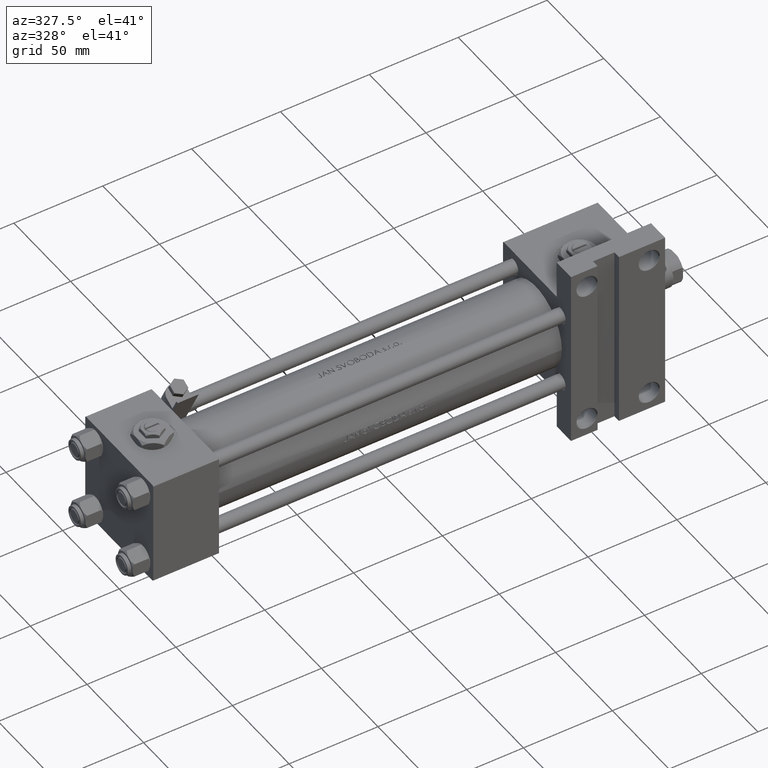
[diagram: clean part render]
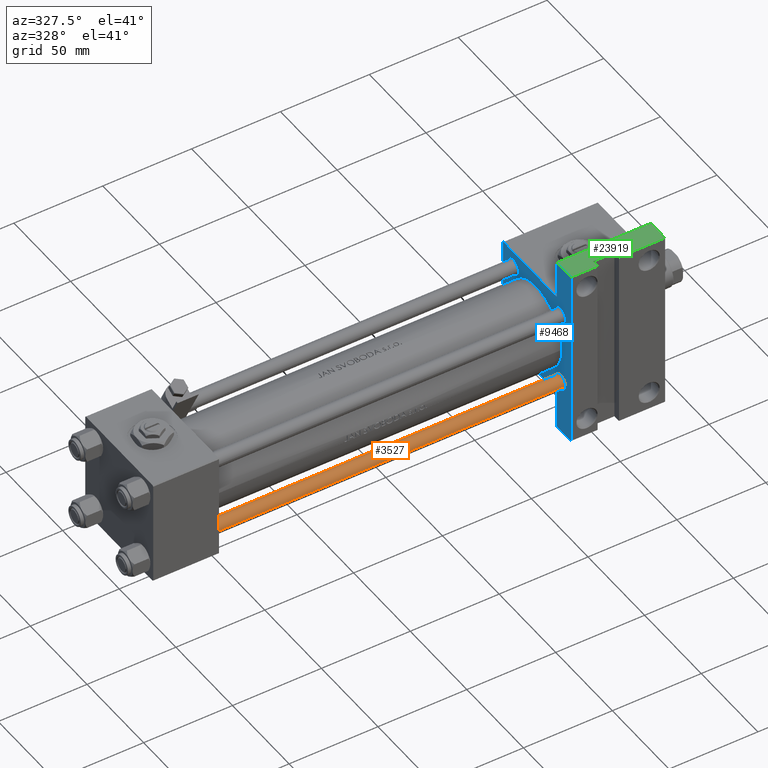
[diagram: same view with three faces highlighted in distinct colors, each labeled with its STEP entity id]
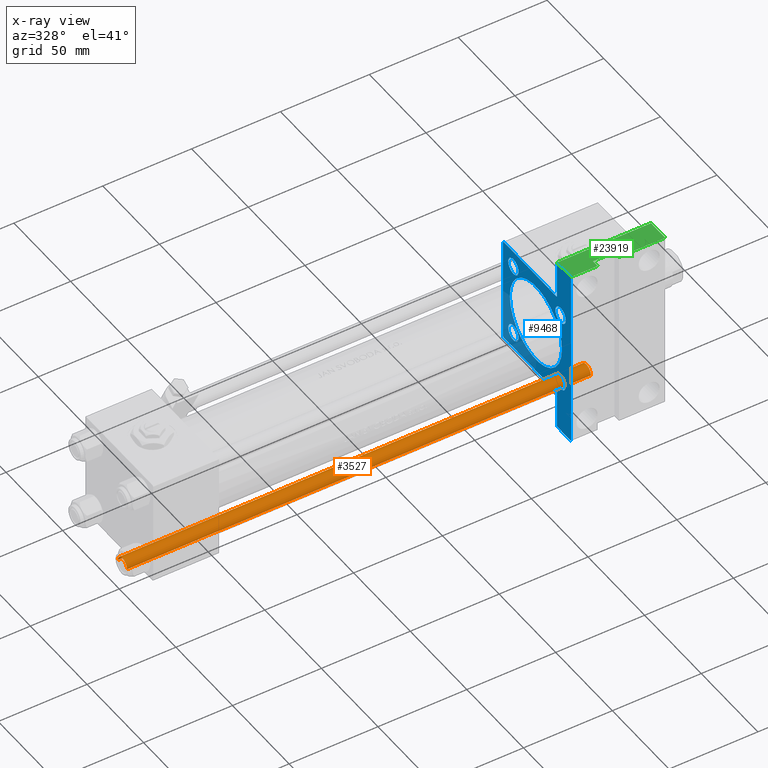
[diagram: x-ray of the same camera — body ghosted, the three highlighted faces saturated]
A machine part, auxiliary view with three faces highlighted in distinct colors.
The next image is the same camera in x-ray (body ghosted, the three faces saturated) — at least one of them is partly hidden behind the body in this view.
Their STEP definitions:

[orange] entity #3527 — the highlighted cylindrical surface (edge-blend (fillet) strip) has radius 4 mm, axis along (1, 0, 0).
#936 = VECTOR ( 'NONE', #16417, 1000.000000000000000 ) ;
#1458 = VERTEX_POINT ( 'NONE', #18186 ) ;
#2367 = VERTEX_POINT ( 'NONE', #22625 ) ;
#2515 = DIRECTION ( 'NONE',  ( -1.000000000000000000, 0.000000000000000000, 0.000000000000000000 ) ) ;
#3527 = ADVANCED_FACE ( 'NONE', ( #6441 ), #34971, .T. ) ;
#4128 = DIRECTION ( 'NONE',  ( -0.000000000000000000, -0.000000000000000000, 1.000000000000000000 ) ) ;
#4670 = EDGE_CURVE ( 'NONE', #28325, #1458, #34199, .T. ) ;
#6114 = EDGE_CURVE ( 'NONE', #2367, #1458, #47521, .T. ) ;
#6441 = FACE_OUTER_BOUND ( 'NONE', #12137, .T. ) ;
#7972 = ORIENTED_EDGE ( 'NONE', *, *, #50745, .T. ) ;
#8755 = CIRCLE ( 'NONE', #38886, 4.000000000000000000 ) ;
#8821 = DIRECTION ( 'NONE',  ( 1.000000000000000000, 0.000000000000000000, 0.000000000000000000 ) ) ;
#8987 = ORIENTED_EDGE ( 'NONE', *, *, #6114, .T. ) ;
#11170 = CARTESIAN_POINT ( 'NONE',  ( -4.000000000000000000, 0.000000000000000000, 262.0000000000000000 ) ) ;
#11698 = ORIENTED_EDGE ( 'NONE', *, *, #4670, .F. ) ;
#11976 = CARTESIAN_POINT ( 'NONE',  ( 4.000000000000000000, 4.898587196589412829E-16, 262.0000000000000000 ) ) ;
#12137 = EDGE_LOOP ( 'NONE', ( #34759, #7972, #8987, #11698 ) ) ;
#16417 = DIRECTION ( 'NONE',  ( -0.000000000000000000, -0.000000000000000000, -1.000000000000000000 ) ) ;
#18186 = CARTESIAN_POINT ( 'NONE',  ( -4.000000000000000000, 0.000000000000000000, 0.5000000000000559552 ) ) ;
#19005 = CARTESIAN_POINT ( 'NONE',  ( 0.000000000000000000, 0.000000000000000000, 262.0000000000000000 ) ) ;
#19977 = CARTESIAN_POINT ( 'NONE',  ( 4.000000000000000000, 4.898587196589412829E-16, 261.5000000000000000 ) ) ;
#21316 = CARTESIAN_POINT ( 'NONE',  ( 0.000000000000000000, 0.000000000000000000, 261.5000000000000000 ) ) ;
#22429 = AXIS2_PLACEMENT_3D ( 'NONE', #28203, #4128, #8821 ) ;
#22625 = CARTESIAN_POINT ( 'NONE',  ( 4.000000000000000000, 4.898587196589412829E-16, 0.5000000000000559552 ) ) ;
#23178 = AXIS2_PLACEMENT_3D ( 'NONE', #19005, #50965, #2515 ) ;
#25250 = DIRECTION ( 'NONE',  ( 0.000000000000000000, 0.000000000000000000, -1.000000000000000000 ) ) ;
#28203 = CARTESIAN_POINT ( 'NONE',  ( 0.000000000000000000, 0.000000000000000000, 0.5000000000000559552 ) ) ;
#28325 = VERTEX_POINT ( 'NONE', #39821 ) ;
#34199 = LINE ( 'NONE', #11170, #41634 ) ;
#34476 = EDGE_CURVE ( 'NONE', #28325, #35613, #8755, .T. ) ;
#34759 = ORIENTED_EDGE ( 'NONE', *, *, #34476, .T. ) ;
#34971 = CYLINDRICAL_SURFACE ( 'NONE', #23178, 4.000000000000000000 ) ;
#35613 = VERTEX_POINT ( 'NONE', #19977 ) ;
#38886 = AXIS2_PLACEMENT_3D ( 'NONE', #21316, #25250, #40943 ) ;
#39821 = CARTESIAN_POINT ( 'NONE',  ( -4.000000000000000000, 0.000000000000000000, 261.5000000000000000 ) ) ;
#40230 = LINE ( 'NONE', #11976, #936 ) ;
#40943 = DIRECTION ( 'NONE',  ( 1.000000000000000000, 0.000000000000000000, 0.000000000000000000 ) ) ;
#41634 = VECTOR ( 'NONE', #43108, 1000.000000000000000 ) ;
#43108 = DIRECTION ( 'NONE',  ( -0.000000000000000000, -0.000000000000000000, -1.000000000000000000 ) ) ;
#47521 = CIRCLE ( 'NONE', #22429, 4.000000000000000000 ) ;
#50745 = EDGE_CURVE ( 'NONE', #35613, #2367, #40230, .T. ) ;
#50965 = DIRECTION ( 'NONE',  ( -0.000000000000000000, -0.000000000000000000, -1.000000000000000000 ) ) ;

[blue] entity #9468 — the highlighted planar face has unit normal (-1, 0, -0).
#689 = VERTEX_POINT ( 'NONE', #36964 ) ;
#748 = CIRCLE ( 'NONE', #4123, 4.500000000000007105 ) ;
#1271 = EDGE_LOOP ( 'NONE', ( #13258, #27684 ) ) ;
#1642 = CARTESIAN_POINT ( 'NONE',  ( 235.0000000000000284, -51.50000000000002132, -29.99999999999999645 ) ) ;
#1815 = DIRECTION ( 'NONE',  ( -0.000000000000000000, 0.000000000000000000, 1.000000000000000000 ) ) ;
#1848 = CIRCLE ( 'NONE', #49499, 4.500000000000007105 ) ;
#1859 = VERTEX_POINT ( 'NONE', #42711 ) ;
#2069 = CARTESIAN_POINT ( 'NONE',  ( 235.0000000000000284, 51.49999999999997868, -17.49999999999999645 ) ) ;
#2148 = CARTESIAN_POINT ( 'NONE',  ( 235.0000000000000284, 20.84999999999999787, 25.35000000000000853 ) ) ;
#3192 = CIRCLE ( 'NONE', #24898, 4.500000000000007105 ) ;
#3818 = CARTESIAN_POINT ( 'NONE',  ( 235.0000000000000284, 30.00000000000000000, -17.49999999999998224 ) ) ;
#4013 = CIRCLE ( 'NONE', #45835, 4.500000000000007105 ) ;
#4062 = CARTESIAN_POINT ( 'NONE',  ( 235.0000000000000284, -1.224646799147354686E-16, 1.000000000000000888 ) ) ;
#4123 = AXIS2_PLACEMENT_3D ( 'NONE', #25961, #17860, #21522 ) ;
#4154 = EDGE_CURVE ( 'NONE', #1859, #49333, #3192, .T. ) ;
#4733 = CARTESIAN_POINT ( 'NONE',  ( 235.0000000000000284, -30.00000000000000000, 29.49999999999993605 ) ) ;
#4996 = DIRECTION ( 'NONE',  ( 0.000000000000000000, 0.000000000000000000, -1.000000000000000000 ) ) ;
#5132 = EDGE_LOOP ( 'NONE', ( #51809, #16420, #8617, #7700, #18566, #28696, #37142, #44551, #47782, #28459 ) ) ;
#5514 = AXIS2_PLACEMENT_3D ( 'NONE', #4062, #12423, #36758 ) ;
#5974 = CARTESIAN_POINT ( 'NONE',  ( 235.0000000000000284, -20.84999999999999076, -20.85000000000000497 ) ) ;
#6229 = AXIS2_PLACEMENT_3D ( 'NONE', #33829, #9495, #41428 ) ;
#6232 = DIRECTION ( 'NONE',  ( 1.000000000000000000, -0.000000000000000000, 0.000000000000000000 ) ) ;
#6282 = DIRECTION ( 'NONE',  ( 0.000000000000000000, 0.000000000000000000, -1.000000000000000000 ) ) ;
#6338 = CARTESIAN_POINT ( 'NONE',  ( 235.0000000000000284, 20.84999999999999787, -25.35000000000000853 ) ) ;
#6466 = EDGE_CURVE ( 'NONE', #17773, #10599, #19778, .T. ) ;
#6658 = DIRECTION ( 'NONE',  ( 1.000000000000000000, -0.000000000000000000, 0.000000000000000000 ) ) ;
#6824 = DIRECTION ( 'NONE',  ( 0.000000000000000000, 1.000000000000000000, 0.000000000000000000 ) ) ;
#7041 = DIRECTION ( 'NONE',  ( 0.000000000000000000, 0.000000000000000000, 1.000000000000000000 ) ) ;
#7700 = ORIENTED_EDGE ( 'NONE', *, *, #21653, .T. ) ;
#7883 = EDGE_CURVE ( 'NONE', #36931, #47979, #748, .T. ) ;
#8404 = CARTESIAN_POINT ( 'NONE',  ( 235.0000000000000284, 51.49999999999997868, -17.49999999999999645 ) ) ;
#8617 = ORIENTED_EDGE ( 'NONE', *, *, #29218, .T. ) ;
#8889 = CARTESIAN_POINT ( 'NONE',  ( 235.0000000000000284, -20.84999999999999076, 20.85000000000000497 ) ) ;
#9027 = VERTEX_POINT ( 'NONE', #43531 ) ;
#9468 = ADVANCED_FACE ( 'NONE', ( #21698, #37664, #46044, #25372, #29559, #41327 ), #18279, .T. ) ;
#9495 = DIRECTION ( 'NONE',  ( 1.000000000000000000, -0.000000000000000000, 0.000000000000000000 ) ) ;
#9656 = DIRECTION ( 'NONE',  ( -1.000000000000000000, 0.000000000000000000, -0.000000000000000000 ) ) ;
#9717 = VERTEX_POINT ( 'NONE', #22334 ) ;
#9920 = DIRECTION ( 'NONE',  ( -1.290957005378090308E-15, 1.000000000000000000, -0.000000000000000000 ) ) ;
#10431 = LINE ( 'NONE', #2069, #45622 ) ;
#10599 = VERTEX_POINT ( 'NONE', #32332 ) ;
#10988 = EDGE_CURVE ( 'NONE', #33734, #46631, #47703, .T. ) ;
#11575 = CARTESIAN_POINT ( 'NONE',  ( 235.0000000000000284, -20.84999999999999076, -16.34999999999999787 ) ) ;
#11631 = DIRECTION ( 'NONE',  ( 1.000000000000000000, 0.000000000000000000, 0.000000000000000000 ) ) ;
#12423 = DIRECTION ( 'NONE',  ( 1.000000000000000000, 0.000000000000000000, 0.000000000000000000 ) ) ;
#13257 = CARTESIAN_POINT ( 'NONE',  ( 235.0000000000000284, -29.74999999999997158, 29.74999999999997158 ) ) ;
#13258 = ORIENTED_EDGE ( 'NONE', *, *, #39218, .T. ) ;
#13424 = AXIS2_PLACEMENT_3D ( 'NONE', #23000, #51569, #7041 ) ;
#13896 = ORIENTED_EDGE ( 'NONE', *, *, #7883, .T. ) ;
#14553 = VECTOR ( 'NONE', #6282, 1000.000000000000000 ) ;
#14666 = EDGE_CURVE ( 'NONE', #46631, #33734, #27665, .T. ) ;
#14831 = EDGE_CURVE ( 'NONE', #9717, #17813, #37181, .T. ) ;
#15458 = CARTESIAN_POINT ( 'NONE',  ( 235.0000000000000284, -51.50000000000002132, -17.49999999999999645 ) ) ;
#15465 = VERTEX_POINT ( 'NONE', #45254 ) ;
#16291 = EDGE_CURVE ( 'NONE', #48876, #35962, #1848, .T. ) ;
#16420 = ORIENTED_EDGE ( 'NONE', *, *, #35046, .T. ) ;
#16723 = CARTESIAN_POINT ( 'NONE',  ( 235.0000000000000284, -20.84999999999999076, 16.34999999999999787 ) ) ;
#17676 = CARTESIAN_POINT ( 'NONE',  ( 235.0000000000000284, -30.00000000000000000, 29.99999999999999289 ) ) ;
#17726 = DIRECTION ( 'NONE',  ( 0.000000000000000000, 0.7071067811865672237, -0.7071067811865279218 ) ) ;
#17773 = VERTEX_POINT ( 'NONE', #22391 ) ;
#17813 = VERTEX_POINT ( 'NONE', #28133 ) ;
#17860 = DIRECTION ( 'NONE',  ( 1.000000000000000000, -0.000000000000000000, 0.000000000000000000 ) ) ;
#17960 = CIRCLE ( 'NONE', #32977, 4.500000000000007105 ) ;
#18279 = PLANE ( 'NONE',  #50169 ) ;
#18322 = LINE ( 'NONE', #38212, #14553 ) ;
#18566 = ORIENTED_EDGE ( 'NONE', *, *, #14831, .T. ) ;
#18808 = DIRECTION ( 'NONE',  ( 0.000000000000000000, 0.000000000000000000, -1.000000000000000000 ) ) ;
#18833 = DIRECTION ( 'NONE',  ( 0.000000000000000000, -1.000000000000000000, -1.156482317317871478E-16 ) ) ;
#19778 = LINE ( 'NONE', #24472, #35027 ) ;
#20204 = VECTOR ( 'NONE', #6824, 1000.000000000000000 ) ;
#20286 = DIRECTION ( 'NONE',  ( 0.000000000000000000, -1.000000000000000000, -1.156482317317871478E-16 ) ) ;
#21522 = DIRECTION ( 'NONE',  ( 0.000000000000000000, 0.000000000000000000, 1.000000000000000000 ) ) ;
#21647 = CARTESIAN_POINT ( 'NONE',  ( 235.0000000000000284, 29.74999999999916156, 29.75000000000081712 ) ) ;
#21653 = EDGE_CURVE ( 'NONE', #40999, #9717, #10431, .T. ) ;
#21698 = FACE_BOUND ( 'NONE', #21917, .T. ) ;
#21917 = EDGE_LOOP ( 'NONE', ( #37341, #39706 ) ) ;
#22334 = CARTESIAN_POINT ( 'NONE',  ( 235.0000000000000284, 51.49999999999997868, -17.49999999999999645 ) ) ;
#22391 = CARTESIAN_POINT ( 'NONE',  ( 235.0000000000000284, 29.49999999999997158, 30.00000000000000000 ) ) ;
#22764 = EDGE_CURVE ( 'NONE', #40506, #51349, #30649, .T. ) ;
#22991 = LINE ( 'NONE', #31374, #33230 ) ;
#23000 = CARTESIAN_POINT ( 'NONE',  ( 235.0000000000000284, 20.84999999999999787, 20.85000000000000142 ) ) ;
#23165 = CARTESIAN_POINT ( 'NONE',  ( 235.0000000000000284, -20.84999999999999076, 20.85000000000000497 ) ) ;
#23302 = ORIENTED_EDGE ( 'NONE', *, *, #30976, .T. ) ;
#23825 = VECTOR ( 'NONE', #17726, 1000.000000000000000 ) ;
#24472 = CARTESIAN_POINT ( 'NONE',  ( 235.0000000000000284, 30.00000000000000000, 30.00000000000000000 ) ) ;
#24862 = DIRECTION ( 'NONE',  ( 1.000000000000000000, -0.000000000000000000, 0.000000000000000000 ) ) ;
#24898 = AXIS2_PLACEMENT_3D ( 'NONE', #8889, #24862, #28267 ) ;
#25177 = EDGE_LOOP ( 'NONE', ( #13896, #47572 ) ) ;
#25372 = FACE_BOUND ( 'NONE', #44241, .T. ) ;
#25907 = EDGE_CURVE ( 'NONE', #29086, #51349, #33373, .T. ) ;
#25961 = CARTESIAN_POINT ( 'NONE',  ( 235.0000000000000284, 20.84999999999999787, -20.85000000000000142 ) ) ;
#26379 = DIRECTION ( 'NONE',  ( 0.000000000000000000, 0.000000000000000000, 1.000000000000000000 ) ) ;
#27665 = CIRCLE ( 'NONE', #36030, 4.500000000000007105 ) ;
#27684 = ORIENTED_EDGE ( 'NONE', *, *, #37301, .T. ) ;
#28133 = CARTESIAN_POINT ( 'NONE',  ( 235.0000000000000284, 51.49999999999997868, -29.99999999999999645 ) ) ;
#28160 = AXIS2_PLACEMENT_3D ( 'NONE', #31004, #11631, #43312 ) ;
#28267 = DIRECTION ( 'NONE',  ( 0.000000000000000000, 0.000000000000000000, 1.000000000000000000 ) ) ;
#28459 = ORIENTED_EDGE ( 'NONE', *, *, #34229, .T. ) ;
#28696 = ORIENTED_EDGE ( 'NONE', *, *, #47554, .T. ) ;
#28791 = CIRCLE ( 'NONE', #6229, 4.500000000000007105 ) ;
#28972 = CIRCLE ( 'NONE', #28160, 23.00000000000000000 ) ;
#29086 = VERTEX_POINT ( 'NONE', #4733 ) ;
#29191 = DIRECTION ( 'NONE',  ( 0.000000000000000000, 0.000000000000000000, -1.000000000000000000 ) ) ;
#29218 = EDGE_CURVE ( 'NONE', #689, #40999, #18322, .T. ) ;
#29559 = FACE_BOUND ( 'NONE', #1271, .T. ) ;
#30649 = LINE ( 'NONE', #15458, #20204 ) ;
#30755 = EDGE_CURVE ( 'NONE', #49333, #1859, #17960, .T. ) ;
#30841 = CARTESIAN_POINT ( 'NONE',  ( 235.0000000000000284, 20.84999999999999787, -16.34999999999999432 ) ) ;
#30976 = EDGE_CURVE ( 'NONE', #35962, #48876, #28791, .T. ) ;
#31004 = CARTESIAN_POINT ( 'NONE',  ( 235.0000000000000284, -1.224646799147354686E-16, 1.000000000000000888 ) ) ;
#31374 = CARTESIAN_POINT ( 'NONE',  ( 235.0000000000000284, -51.50000000000002132, -17.49999999999999645 ) ) ;
#31412 = CIRCLE ( 'NONE', #5514, 23.00000000000000000 ) ;
#31439 = CARTESIAN_POINT ( 'NONE',  ( 235.0000000000000284, -20.84999999999999076, -25.35000000000001208 ) ) ;
#31721 = CARTESIAN_POINT ( 'NONE',  ( 235.0000000000000284, 20.84999999999999787, 20.85000000000000142 ) ) ;
#32332 = CARTESIAN_POINT ( 'NONE',  ( 235.0000000000000284, -29.49999999999994316, 29.99999999999999289 ) ) ;
#32977 = AXIS2_PLACEMENT_3D ( 'NONE', #23165, #39137, #47008 ) ;
#33230 = VECTOR ( 'NONE', #18808, 1000.000000000000000 ) ;
#33373 = LINE ( 'NONE', #17676, #38698 ) ;
#33411 = DIRECTION ( 'NONE',  ( -0.000000000000000000, 0.7071067811865474617, 0.7071067811865474617 ) ) ;
#33734 = VERTEX_POINT ( 'NONE', #2148 ) ;
#33829 = CARTESIAN_POINT ( 'NONE',  ( 235.0000000000000284, -20.84999999999999076, -20.85000000000000497 ) ) ;
#34229 = EDGE_CURVE ( 'NONE', #29086, #10599, #44449, .T. ) ;
#35027 = VECTOR ( 'NONE', #20286, 1000.000000000000000 ) ;
#35046 = EDGE_CURVE ( 'NONE', #17773, #689, #45223, .T. ) ;
#35057 = CARTESIAN_POINT ( 'NONE',  ( 235.0000000000000284, 30.00000000000000000, -29.99999999999999289 ) ) ;
#35645 = DIRECTION ( 'NONE',  ( 0.000000000000000000, 0.000000000000000000, 1.000000000000000000 ) ) ;
#35962 = VERTEX_POINT ( 'NONE', #31439 ) ;
#36030 = AXIS2_PLACEMENT_3D ( 'NONE', #31721, #46926, #35645 ) ;
#36059 = EDGE_LOOP ( 'NONE', ( #38687, #41098 ) ) ;
#36553 = VERTEX_POINT ( 'NONE', #1642 ) ;
#36758 = DIRECTION ( 'NONE',  ( 0.000000000000000000, 0.000000000000000000, -1.000000000000000000 ) ) ;
#36931 = VERTEX_POINT ( 'NONE', #30841 ) ;
#36964 = CARTESIAN_POINT ( 'NONE',  ( 235.0000000000000284, 30.00000000000000000, 29.50000000000000000 ) ) ;
#37142 = ORIENTED_EDGE ( 'NONE', *, *, #40553, .F. ) ;
#37181 = LINE ( 'NONE', #8404, #51122 ) ;
#37301 = EDGE_CURVE ( 'NONE', #9027, #15465, #31412, .T. ) ;
#37341 = ORIENTED_EDGE ( 'NONE', *, *, #4154, .T. ) ;
#37664 = FACE_BOUND ( 'NONE', #36059, .T. ) ;
#37890 = CARTESIAN_POINT ( 'NONE',  ( 235.0000000000000284, 20.84999999999999787, 16.34999999999999432 ) ) ;
#38212 = CARTESIAN_POINT ( 'NONE',  ( 235.0000000000000284, 30.00000000000000000, 30.00000000000000000 ) ) ;
#38687 = ORIENTED_EDGE ( 'NONE', *, *, #10988, .T. ) ;
#38698 = VECTOR ( 'NONE', #29191, 1000.000000000000000 ) ;
#39137 = DIRECTION ( 'NONE',  ( 1.000000000000000000, -0.000000000000000000, 0.000000000000000000 ) ) ;
#39218 = EDGE_CURVE ( 'NONE', #15465, #9027, #28972, .T. ) ;
#39706 = ORIENTED_EDGE ( 'NONE', *, *, #30755, .T. ) ;
#40506 = VERTEX_POINT ( 'NONE', #45543 ) ;
#40553 = EDGE_CURVE ( 'NONE', #40506, #36553, #22991, .T. ) ;
#40999 = VERTEX_POINT ( 'NONE', #3818 ) ;
#41098 = ORIENTED_EDGE ( 'NONE', *, *, #14666, .T. ) ;
#41327 = FACE_OUTER_BOUND ( 'NONE', #5132, .T. ) ;
#41428 = DIRECTION ( 'NONE',  ( 0.000000000000000000, 0.000000000000000000, 1.000000000000000000 ) ) ;
#42092 = EDGE_CURVE ( 'NONE', #47979, #36931, #4013, .T. ) ;
#42711 = CARTESIAN_POINT ( 'NONE',  ( 235.0000000000000284, -20.84999999999999076, 25.35000000000001208 ) ) ;
#43312 = DIRECTION ( 'NONE',  ( 0.000000000000000000, 0.000000000000000000, -1.000000000000000000 ) ) ;
#43531 = CARTESIAN_POINT ( 'NONE',  ( 235.0000000000000284, 2.694222958124176809E-15, -22.00000000000000000 ) ) ;
#44241 = EDGE_LOOP ( 'NONE', ( #51705, #23302 ) ) ;
#44449 = LINE ( 'NONE', #13257, #46479 ) ;
#44551 = ORIENTED_EDGE ( 'NONE', *, *, #22764, .T. ) ;
#44936 = CARTESIAN_POINT ( 'NONE',  ( 235.0000000000000284, -30.00000000000000000, -17.49999999999999645 ) ) ;
#45223 = LINE ( 'NONE', #21647, #23825 ) ;
#45254 = CARTESIAN_POINT ( 'NONE',  ( 235.0000000000000284, -1.224646799147354686E-16, 24.00000000000000000 ) ) ;
#45534 = CARTESIAN_POINT ( 'NONE',  ( 235.0000000000000284, 0.000000000000000000, 0.000000000000000000 ) ) ;
#45543 = CARTESIAN_POINT ( 'NONE',  ( 235.0000000000000284, -51.50000000000002132, -17.49999999999999645 ) ) ;
#45622 = VECTOR ( 'NONE', #9920, 1000.000000000000000 ) ;
#45835 = AXIS2_PLACEMENT_3D ( 'NONE', #47489, #6658, #46454 ) ;
#46044 = FACE_BOUND ( 'NONE', #25177, .T. ) ;
#46454 = DIRECTION ( 'NONE',  ( 0.000000000000000000, 0.000000000000000000, 1.000000000000000000 ) ) ;
#46479 = VECTOR ( 'NONE', #33411, 1000.000000000000114 ) ;
#46631 = VERTEX_POINT ( 'NONE', #37890 ) ;
#46926 = DIRECTION ( 'NONE',  ( 1.000000000000000000, -0.000000000000000000, 0.000000000000000000 ) ) ;
#47008 = DIRECTION ( 'NONE',  ( 0.000000000000000000, 0.000000000000000000, 1.000000000000000000 ) ) ;
#47489 = CARTESIAN_POINT ( 'NONE',  ( 235.0000000000000284, 20.84999999999999787, -20.85000000000000142 ) ) ;
#47554 = EDGE_CURVE ( 'NONE', #17813, #36553, #50788, .T. ) ;
#47572 = ORIENTED_EDGE ( 'NONE', *, *, #42092, .T. ) ;
#47703 = CIRCLE ( 'NONE', #13424, 4.500000000000007105 ) ;
#47782 = ORIENTED_EDGE ( 'NONE', *, *, #25907, .F. ) ;
#47979 = VERTEX_POINT ( 'NONE', #6338 ) ;
#48876 = VERTEX_POINT ( 'NONE', #11575 ) ;
#49243 = VECTOR ( 'NONE', #18833, 1000.000000000000000 ) ;
#49333 = VERTEX_POINT ( 'NONE', #16723 ) ;
#49499 = AXIS2_PLACEMENT_3D ( 'NONE', #5974, #6232, #26379 ) ;
#50169 = AXIS2_PLACEMENT_3D ( 'NONE', #45534, #9656, #1815 ) ;
#50788 = LINE ( 'NONE', #35057, #49243 ) ;
#51122 = VECTOR ( 'NONE', #4996, 1000.000000000000000 ) ;
#51349 = VERTEX_POINT ( 'NONE', #44936 ) ;
#51569 = DIRECTION ( 'NONE',  ( 1.000000000000000000, -0.000000000000000000, 0.000000000000000000 ) ) ;
#51705 = ORIENTED_EDGE ( 'NONE', *, *, #16291, .T. ) ;
#51809 = ORIENTED_EDGE ( 'NONE', *, *, #6466, .F. ) ;

[green] entity #23919 — the highlighted planar face has unit normal (0, 0, 1).
#420 = EDGE_CURVE ( 'NONE', #17313, #5154, #5102, .T. ) ;
#1219 = ORIENTED_EDGE ( 'NONE', *, *, #29614, .T. ) ;
#1642 = CARTESIAN_POINT ( 'NONE',  ( 235.0000000000000284, -51.50000000000002132, -29.99999999999999645 ) ) ;
#2078 = VECTOR ( 'NONE', #13334, 1000.000000000000000 ) ;
#2696 = VECTOR ( 'NONE', #29807, 1000.000000000000000 ) ;
#2867 = VECTOR ( 'NONE', #34489, 1000.000000000000000 ) ;
#3323 = ORIENTED_EDGE ( 'NONE', *, *, #17520, .F. ) ;
#4742 = EDGE_CURVE ( 'NONE', #50079, #36553, #36515, .T. ) ;
#5102 = LINE ( 'NONE', #27904, #51628 ) ;
#5154 = VERTEX_POINT ( 'NONE', #51702 ) ;
#5338 = LINE ( 'NONE', #32822, #50280 ) ;
#5595 = DIRECTION ( 'NONE',  ( -1.000000000000000000, -0.000000000000000000, -0.000000000000000000 ) ) ;
#5667 = ORIENTED_EDGE ( 'NONE', *, *, #34773, .F. ) ;
#7271 = DIRECTION ( 'NONE',  ( -1.000000000000000000, -0.000000000000000000, -0.000000000000000000 ) ) ;
#7454 = CARTESIAN_POINT ( 'NONE',  ( 250.0000000000000568, -51.49999999999997868, -29.99999999999999645 ) ) ;
#8595 = ORIENTED_EDGE ( 'NONE', *, *, #50273, .F. ) ;
#8662 = CARTESIAN_POINT ( 'NONE',  ( 288.0000000000000568, -51.50000000000002132, -17.49999999999999645 ) ) ;
#8746 = ORIENTED_EDGE ( 'NONE', *, *, #40553, .T. ) ;
#11202 = CARTESIAN_POINT ( 'NONE',  ( 250.0000000000000568, -51.49999999999997868, -25.99999999999999645 ) ) ;
#12434 = DIRECTION ( 'NONE',  ( -0.000000000000000000, -0.000000000000000000, -1.000000000000000000 ) ) ;
#13334 = DIRECTION ( 'NONE',  ( 0.000000000000000000, 0.000000000000000000, -1.000000000000000000 ) ) ;
#14586 = ORIENTED_EDGE ( 'NONE', *, *, #420, .T. ) ;
#14904 = VERTEX_POINT ( 'NONE', #8662 ) ;
#16226 = CARTESIAN_POINT ( 'NONE',  ( 262.0000000000000000, -51.50000000000002132, -25.99999999999999645 ) ) ;
#17313 = VERTEX_POINT ( 'NONE', #16226 ) ;
#17409 = EDGE_CURVE ( 'NONE', #31717, #50079, #25366, .T. ) ;
#17520 = EDGE_CURVE ( 'NONE', #17313, #31717, #23234, .T. ) ;
#18518 = CARTESIAN_POINT ( 'NONE',  ( 235.0000000000000284, -51.50000000000002132, -17.49999999999999645 ) ) ;
#18808 = DIRECTION ( 'NONE',  ( 0.000000000000000000, 0.000000000000000000, -1.000000000000000000 ) ) ;
#21167 = CARTESIAN_POINT ( 'NONE',  ( 250.0000000000000568, -51.49999999999997868, -25.99999999999999645 ) ) ;
#22161 = DIRECTION ( 'NONE',  ( 0.000000000000000000, -0.000000000000000000, -1.000000000000000000 ) ) ;
#22991 = LINE ( 'NONE', #31374, #33230 ) ;
#23234 = LINE ( 'NONE', #11202, #47849 ) ;
#23919 = ADVANCED_FACE ( 'NONE', ( #38125 ), #46513, .T. ) ;
#25366 = LINE ( 'NONE', #21167, #2696 ) ;
#26348 = CARTESIAN_POINT ( 'NONE',  ( 235.0000000000000284, -51.50000000000002132, -17.49999999999999645 ) ) ;
#27904 = CARTESIAN_POINT ( 'NONE',  ( 262.0000000000000000, -51.49999999999997868, -25.99999999999999645 ) ) ;
#29081 = VECTOR ( 'NONE', #31577, 1000.000000000000000 ) ;
#29614 = EDGE_CURVE ( 'NONE', #14904, #40506, #46283, .T. ) ;
#29807 = DIRECTION ( 'NONE',  ( -0.000000000000000000, -0.000000000000000000, -1.000000000000000000 ) ) ;
#31374 = CARTESIAN_POINT ( 'NONE',  ( 235.0000000000000284, -51.50000000000002132, -17.49999999999999645 ) ) ;
#31577 = DIRECTION ( 'NONE',  ( -1.000000000000000000, -0.000000000000000000, -0.000000000000000000 ) ) ;
#31717 = VERTEX_POINT ( 'NONE', #43474 ) ;
#32822 = CARTESIAN_POINT ( 'NONE',  ( 235.0000000000000284, -51.50000000000002132, -29.99999999999999645 ) ) ;
#33230 = VECTOR ( 'NONE', #18808, 1000.000000000000000 ) ;
#33484 = LINE ( 'NONE', #48952, #2078 ) ;
#33853 = ORIENTED_EDGE ( 'NONE', *, *, #4742, .F. ) ;
#34489 = DIRECTION ( 'NONE',  ( -1.000000000000000000, -0.000000000000000000, -0.000000000000000000 ) ) ;
#34773 = EDGE_CURVE ( 'NONE', #14904, #51658, #33484, .T. ) ;
#36515 = LINE ( 'NONE', #51512, #29081 ) ;
#36553 = VERTEX_POINT ( 'NONE', #1642 ) ;
#38125 = FACE_OUTER_BOUND ( 'NONE', #43860, .T. ) ;
#40506 = VERTEX_POINT ( 'NONE', #45543 ) ;
#40553 = EDGE_CURVE ( 'NONE', #40506, #36553, #22991, .T. ) ;
#40668 = CARTESIAN_POINT ( 'NONE',  ( 288.0000000000000568, -51.50000000000002132, -29.99999999999999645 ) ) ;
#41122 = AXIS2_PLACEMENT_3D ( 'NONE', #26348, #51242, #22161 ) ;
#43474 = CARTESIAN_POINT ( 'NONE',  ( 250.0000000000000568, -51.49999999999997868, -25.99999999999999645 ) ) ;
#43860 = EDGE_LOOP ( 'NONE', ( #14586, #8595, #5667, #1219, #8746, #33853, #45184, #3323 ) ) ;
#45184 = ORIENTED_EDGE ( 'NONE', *, *, #17409, .F. ) ;
#45543 = CARTESIAN_POINT ( 'NONE',  ( 235.0000000000000284, -51.50000000000002132, -17.49999999999999645 ) ) ;
#46283 = LINE ( 'NONE', #18518, #2867 ) ;
#46513 = PLANE ( 'NONE',  #41122 ) ;
#47849 = VECTOR ( 'NONE', #7271, 1000.000000000000000 ) ;
#48952 = CARTESIAN_POINT ( 'NONE',  ( 288.0000000000000568, -51.50000000000002132, -17.49999999999999645 ) ) ;
#50079 = VERTEX_POINT ( 'NONE', #7454 ) ;
#50273 = EDGE_CURVE ( 'NONE', #51658, #5154, #5338, .T. ) ;
#50280 = VECTOR ( 'NONE', #5595, 1000.000000000000000 ) ;
#51242 = DIRECTION ( 'NONE',  ( 0.000000000000000000, -1.000000000000000000, 0.000000000000000000 ) ) ;
#51512 = CARTESIAN_POINT ( 'NONE',  ( 235.0000000000000284, -51.50000000000002132, -29.99999999999999645 ) ) ;
#51628 = VECTOR ( 'NONE', #12434, 1000.000000000000000 ) ;
#51658 = VERTEX_POINT ( 'NONE', #40668 ) ;
#51702 = CARTESIAN_POINT ( 'NONE',  ( 262.0000000000000000, -51.49999999999997868, -29.99999999999999645 ) ) ;